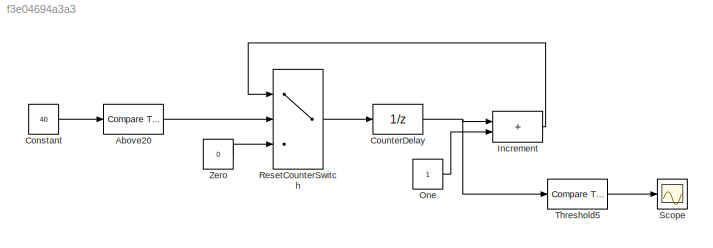
MODEL slx_f3e04694a3a3
KIND model
CONFIG AbsTol = auto
CONFIG EnableMultiTasking = off
CONFIG FixedStep = 1
CONFIG MaxStep = auto
CONFIG MinStep = auto
CONFIG RelTol = 1e-3
CONFIG SampleTimeConstraint = Unconstrained
CONFIG SolverName = FixedStepDiscrete
CONFIG StartTime = 0.0
CONFIG StopTime = 20
BLOCK [Reference] Above20  REF=simulink/Logic and Bit
Operations/Compare
To Constant
  SourceBlock = simulink/Logic and Bit\nOperations/Compare\nTo Constant
  SourceType = Compare To Constant
BLOCK [Constant] Constant
  Value = 40
BLOCK [UnitDelay] CounterDelay
  HasFrameUpgradeWarning = on
BLOCK [Sum] Increment
  IconShape = rectangular
BLOCK [Constant] One
BLOCK [Switch] ResetCounterSwitch
  Criteria = u2 ~= 0
  InputSameDT = off
  SaturateOnIntegerOverflow = off
  Threshold = 0.5
BLOCK [Scope] Scope
  Floating = off
  GraphicalSettings = {"GraphicalSettings":{"LegacySettings":true,"Style":{"Style":{"PlotType":"Auto"}}}}
  NumInputPorts = 1
  ScopeFrameLocation = window
  WasSavedAsWebScope = on
  WindowPosition = [488.000000,222.000000,560.000000,420.000000,]
BLOCK [Reference] Threshold5  REF=simulink/Logic and Bit
Operations/Compare
To Constant
  SourceBlock = simulink/Logic and Bit\nOperations/Compare\nTo Constant
  SourceType = Compare To Constant
BLOCK [Constant] Zero
  Value = 0
LINE Above20:1 -> ResetCounterSwitch:2
LINE Constant:1 -> Above20:1
NET CounterDelay:1 -> Increment:1, Threshold5:1
LINE Increment:1 -> ResetCounterSwitch:1
LINE One:1 -> Increment:2
LINE ResetCounterSwitch:1 -> CounterDelay:1
LINE Threshold5:1 -> Scope:1
LINE Zero:1 -> ResetCounterSwitch:3
note: NET lines group one-source signal fan-out (src -> all destinations, sorted); 1:1 wires keep LINE
